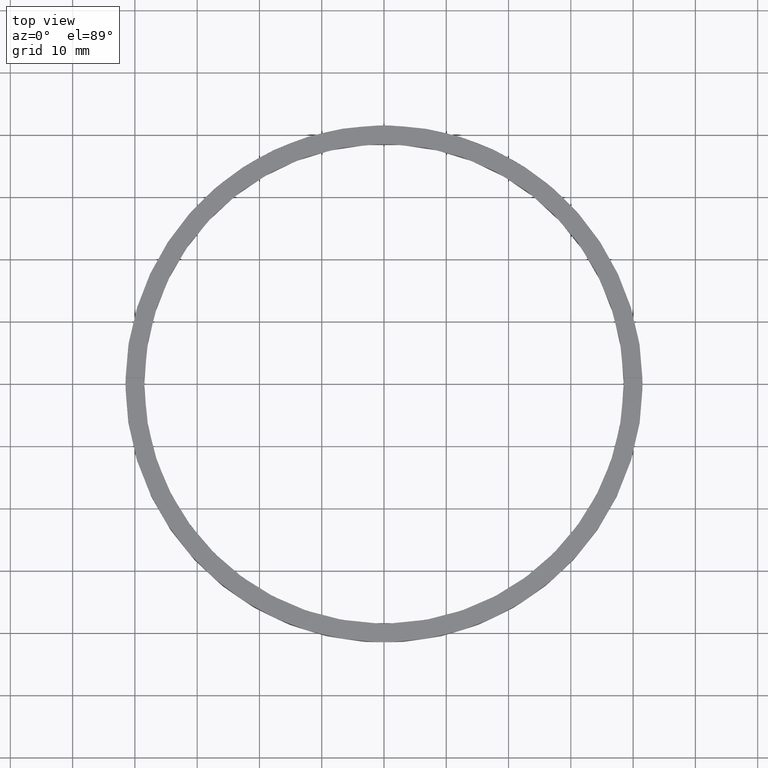
[diagram: clean part render]
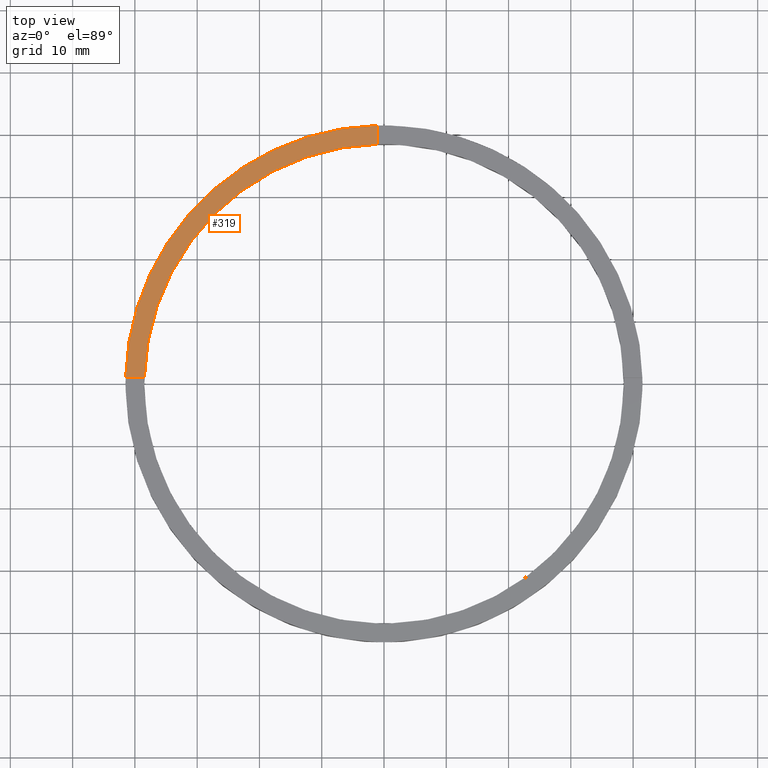
[diagram: same view with one face highlighted and labeled with its STEP entity id]
A machine part, top view. The second image highlights one B-rep face of the part: STEP entity #319.
In plain terms, the highlighted planar face has unit normal (0, 0, 1).
Its self-contained STEP definition (entity closure, byte-faithful):
#47 = CARTESIAN_POINT ( 'NONE',  ( -1.000000000000025757, 41.48795005781799716, 4.000000000000000000 ) ) ;
#51 = CARTESIAN_POINT ( 'NONE',  ( -41.48795005781799716, 0.9999999999999711342, 4.000000000000000000 ) ) ;
#54 = CARTESIAN_POINT ( 'NONE',  ( 0.000000000000000000, 0.000000000000000000, 4.000000000000000000 ) ) ;
#106 = PLANE ( 'NONE',  #371 ) ;
#144 = DIRECTION ( 'NONE',  ( 0.000000000000000000, 0.000000000000000000, 1.000000000000000000 ) ) ;
#183 = EDGE_LOOP ( 'NONE', ( #698, #435, #687, #692 ) ) ;
#186 = CARTESIAN_POINT ( 'NONE',  ( -38.48701079585163143, 0.9999999999999715783, 4.000000000000000000 ) ) ;
#194 = FACE_OUTER_BOUND ( 'NONE', #183, .T. ) ;
#197 = LINE ( 'NONE', #215, #454 ) ;
#215 = CARTESIAN_POINT ( 'NONE',  ( -1.000000000000025757, 31.50000000000000000, 4.000000000000000000 ) ) ;
#279 = DIRECTION ( 'NONE',  ( 0.000000000000000000, 0.000000000000000000, 1.000000000000000000 ) ) ;
#293 = EDGE_CURVE ( 'NONE', #503, #541, #462, .T. ) ;
#309 = EDGE_CURVE ( 'NONE', #503, #525, #197, .T. ) ;
#319 = ADVANCED_FACE ( 'NONE', ( #194 ), #106, .T. ) ;
#323 = DIRECTION ( 'NONE',  ( 1.000000000000000000, 0.000000000000000000, 0.000000000000000000 ) ) ;
#326 = AXIS2_PLACEMENT_3D ( 'NONE', #445, #279, #323 ) ;
#365 = CARTESIAN_POINT ( 'NONE',  ( -31.50000000000018829, 0.9999999999999731326, 4.000000000000000000 ) ) ;
#367 = VECTOR ( 'NONE', #573, 1000.000000000000000 ) ;
#371 = AXIS2_PLACEMENT_3D ( 'NONE', #600, #144, #597 ) ;
#435 = ORIENTED_EDGE ( 'NONE', *, *, #293, .T. ) ;
#445 = CARTESIAN_POINT ( 'NONE',  ( 0.000000000000000000, 0.000000000000000000, 4.000000000000000000 ) ) ;
#454 = VECTOR ( 'NONE', #645, 1000.000000000000000 ) ;
#462 = CIRCLE ( 'NONE', #537, 41.50000000000000000 ) ;
#492 = CIRCLE ( 'NONE', #326, 38.50000000000000000 ) ;
#503 = VERTEX_POINT ( 'NONE', #47 ) ;
#525 = VERTEX_POINT ( 'NONE', #664 ) ;
#536 = DIRECTION ( 'NONE',  ( 1.000000000000000000, 0.000000000000000000, 0.000000000000000000 ) ) ;
#537 = AXIS2_PLACEMENT_3D ( 'NONE', #54, #697, #536 ) ;
#541 = VERTEX_POINT ( 'NONE', #51 ) ;
#561 = EDGE_CURVE ( 'NONE', #525, #754, #492, .T. ) ;
#573 = DIRECTION ( 'NONE',  ( -1.000000000000000000, -1.951563910473907735E-16, 0.000000000000000000 ) ) ;
#597 = DIRECTION ( 'NONE',  ( 1.000000000000000000, 0.000000000000000000, -0.000000000000000000 ) ) ;
#600 = CARTESIAN_POINT ( 'NONE',  ( 0.000000000000000000, 0.000000000000000000, 4.000000000000000000 ) ) ;
#619 = LINE ( 'NONE', #365, #367 ) ;
#645 = DIRECTION ( 'NONE',  ( -0.000000000000000000, -1.000000000000000000, -0.000000000000000000 ) ) ;
#664 = CARTESIAN_POINT ( 'NONE',  ( -1.000000000000025757, 38.48701079585163143, 4.000000000000000000 ) ) ;
#687 = ORIENTED_EDGE ( 'NONE', *, *, #734, .F. ) ;
#692 = ORIENTED_EDGE ( 'NONE', *, *, #561, .F. ) ;
#697 = DIRECTION ( 'NONE',  ( 0.000000000000000000, 0.000000000000000000, 1.000000000000000000 ) ) ;
#698 = ORIENTED_EDGE ( 'NONE', *, *, #309, .F. ) ;
#734 = EDGE_CURVE ( 'NONE', #754, #541, #619, .T. ) ;
#754 = VERTEX_POINT ( 'NONE', #186 ) ;